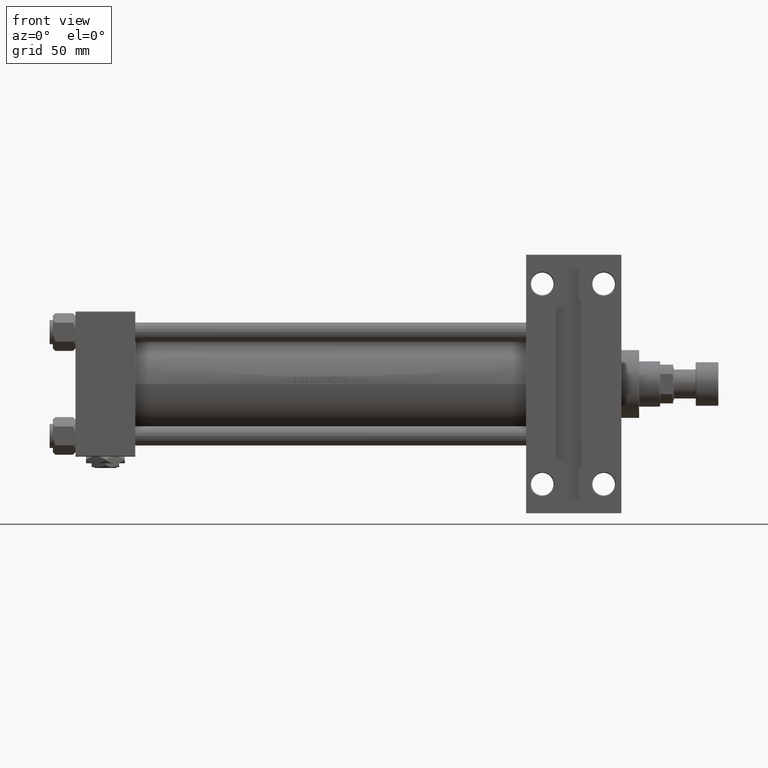
[diagram: clean part render]
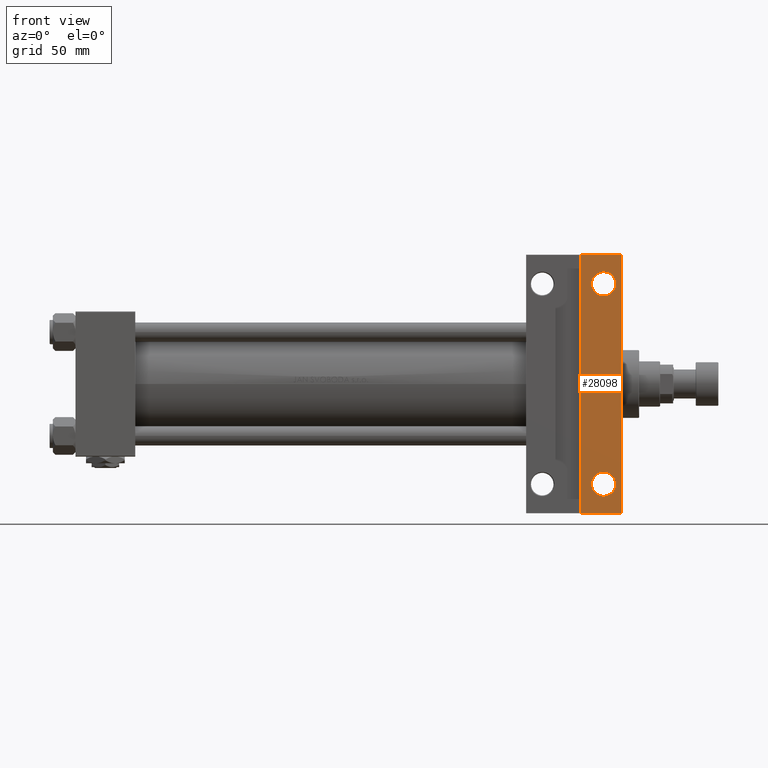
[diagram: same view with one face highlighted and labeled with its STEP entity id]
A machine part, front view. The second image highlights one B-rep face of the part: STEP entity #28098.
In plain terms, the highlighted planar face has unit normal (0, -1, 0).
Its self-contained STEP definition (entity closure, byte-faithful):
#458 = CARTESIAN_POINT ( 'NONE',  ( 334.4994999999999550, 62.00000000000000000, -45.00000000000000000 ) ) ;
#677 = EDGE_LOOP ( 'NONE', ( #33977, #1144, #22619, #39502 ) ) ;
#886 = EDGE_CURVE ( 'NONE', #48854, #15647, #16352, .T. ) ;
#1144 = ORIENTED_EDGE ( 'NONE', *, *, #31931, .T. ) ;
#2089 = EDGE_CURVE ( 'NONE', #15647, #48854, #48029, .T. ) ;
#2773 = VECTOR ( 'NONE', #20971, 1000.000000000000000 ) ;
#2859 = DIRECTION ( 'NONE',  ( -0.000000000000000000, -0.000000000000000000, 1.000000000000000000 ) ) ;
#3836 = EDGE_CURVE ( 'NONE', #8250, #49686, #22198, .T. ) ;
#4252 = AXIS2_PLACEMENT_3D ( 'NONE', #35928, #20470, #8764 ) ;
#6656 = DIRECTION ( 'NONE',  ( -1.000000000000000000, 0.000000000000000000, 0.000000000000000000 ) ) ;
#6708 = CARTESIAN_POINT ( 'NONE',  ( 337.9999999999999432, 45.00000000000001421, -45.00000000000000000 ) ) ;
#7020 = AXIS2_PLACEMENT_3D ( 'NONE', #6708, #32875, #10524 ) ;
#8250 = VERTEX_POINT ( 'NONE', #21520 ) ;
#8438 = EDGE_CURVE ( 'NONE', #37864, #49686, #9758, .T. ) ;
#8764 = DIRECTION ( 'NONE',  ( -1.000000000000000000, 0.000000000000000000, 0.000000000000000000 ) ) ;
#9758 = LINE ( 'NONE', #47367, #2773 ) ;
#9845 = CARTESIAN_POINT ( 'NONE',  ( 334.4994999999999550, -62.00000000000000000, -45.00000000000000000 ) ) ;
#10524 = DIRECTION ( 'NONE',  ( -1.000000000000000000, 0.000000000000000000, -0.000000000000000000 ) ) ;
#11666 = DIRECTION ( 'NONE',  ( 0.000000000000000000, -1.000000000000000000, 0.000000000000000000 ) ) ;
#11881 = ORIENTED_EDGE ( 'NONE', *, *, #22322, .T. ) ;
#12633 = ORIENTED_EDGE ( 'NONE', *, *, #2089, .T. ) ;
#13763 = VERTEX_POINT ( 'NONE', #38112 ) ;
#14559 = DIRECTION ( 'NONE',  ( -1.000000000000000000, 4.704334850106595794E-16, -0.000000000000000000 ) ) ;
#14791 = VECTOR ( 'NONE', #11666, 1000.000000000000000 ) ;
#15647 = VERTEX_POINT ( 'NONE', #9845 ) ;
#16352 = CIRCLE ( 'NONE', #47169, 7.499499999999992284 ) ;
#16650 = EDGE_CURVE ( 'NONE', #32006, #36851, #20072, .T. ) ;
#17535 = EDGE_LOOP ( 'NONE', ( #28365, #12633 ) ) ;
#17897 = FACE_BOUND ( 'NONE', #42829, .T. ) ;
#18159 = FACE_OUTER_BOUND ( 'NONE', #677, .T. ) ;
#18199 = CIRCLE ( 'NONE', #29522, 7.499499999999992284 ) ;
#18632 = CARTESIAN_POINT ( 'NONE',  ( 278.9999999999999432, -80.00000000000001421, -45.00000000000000000 ) ) ;
#19041 = CARTESIAN_POINT ( 'NONE',  ( 319.5004999999999882, 62.00000000000000000, -45.00000000000000000 ) ) ;
#20024 = CARTESIAN_POINT ( 'NONE',  ( 312.9999999999999432, -79.99999999999997158, -45.00000000000000000 ) ) ;
#20072 = CIRCLE ( 'NONE', #37892, 7.499499999999992284 ) ;
#20470 = DIRECTION ( 'NONE',  ( -0.000000000000000000, -0.000000000000000000, 1.000000000000000000 ) ) ;
#20971 = DIRECTION ( 'NONE',  ( -0.000000000000000000, -1.000000000000000000, -0.000000000000000000 ) ) ;
#21520 = CARTESIAN_POINT ( 'NONE',  ( 337.9999999999999432, -80.00000000000004263, -45.00000000000000000 ) ) ;
#22198 = LINE ( 'NONE', #18632, #44062 ) ;
#22314 = DIRECTION ( 'NONE',  ( -0.000000000000000000, -0.000000000000000000, 1.000000000000000000 ) ) ;
#22322 = EDGE_CURVE ( 'NONE', #36851, #32006, #18199, .T. ) ;
#22619 = ORIENTED_EDGE ( 'NONE', *, *, #44537, .T. ) ;
#23552 = LINE ( 'NONE', #38543, #47719 ) ;
#23807 = DIRECTION ( 'NONE',  ( -0.000000000000000000, -0.000000000000000000, 1.000000000000000000 ) ) ;
#25500 = ORIENTED_EDGE ( 'NONE', *, *, #16650, .T. ) ;
#25608 = DIRECTION ( 'NONE',  ( -1.000000000000000000, 0.000000000000000000, 0.000000000000000000 ) ) ;
#27293 = CARTESIAN_POINT ( 'NONE',  ( 319.5004999999999882, -62.00000000000000000, -45.00000000000000000 ) ) ;
#27398 = CARTESIAN_POINT ( 'NONE',  ( 337.9999999999999432, 45.00000000000001421, -45.00000000000000000 ) ) ;
#28098 = ADVANCED_FACE ( 'NONE', ( #18159, #29818, #17897 ), #45308, .T. ) ;
#28365 = ORIENTED_EDGE ( 'NONE', *, *, #886, .T. ) ;
#29522 = AXIS2_PLACEMENT_3D ( 'NONE', #33572, #2859, #6656 ) ;
#29818 = FACE_BOUND ( 'NONE', #17535, .T. ) ;
#30699 = LINE ( 'NONE', #27398, #14791 ) ;
#30912 = CARTESIAN_POINT ( 'NONE',  ( 326.9999999999999432, -62.00000000000000000, -45.00000000000000000 ) ) ;
#31931 = EDGE_CURVE ( 'NONE', #37864, #13763, #23552, .T. ) ;
#32006 = VERTEX_POINT ( 'NONE', #458 ) ;
#32875 = DIRECTION ( 'NONE',  ( 0.000000000000000000, 0.000000000000000000, -1.000000000000000000 ) ) ;
#33572 = CARTESIAN_POINT ( 'NONE',  ( 326.9999999999999432, 62.00000000000000000, -45.00000000000000000 ) ) ;
#33967 = CARTESIAN_POINT ( 'NONE',  ( 326.9999999999999432, 62.00000000000000000, -45.00000000000000000 ) ) ;
#33977 = ORIENTED_EDGE ( 'NONE', *, *, #8438, .F. ) ;
#34700 = CARTESIAN_POINT ( 'NONE',  ( 312.9999999999999432, 79.99999999999995737, -45.00000000000000000 ) ) ;
#34978 = DIRECTION ( 'NONE',  ( -1.000000000000000000, 0.000000000000000000, 0.000000000000000000 ) ) ;
#35928 = CARTESIAN_POINT ( 'NONE',  ( 326.9999999999999432, -62.00000000000000000, -45.00000000000000000 ) ) ;
#36851 = VERTEX_POINT ( 'NONE', #19041 ) ;
#37864 = VERTEX_POINT ( 'NONE', #34700 ) ;
#37892 = AXIS2_PLACEMENT_3D ( 'NONE', #33967, #22314, #25608 ) ;
#38112 = CARTESIAN_POINT ( 'NONE',  ( 337.9999999999999432, 79.99999999999998579, -45.00000000000000000 ) ) ;
#38543 = CARTESIAN_POINT ( 'NONE',  ( 278.9999999999999432, 79.99999999999995737, -45.00000000000000000 ) ) ;
#39502 = ORIENTED_EDGE ( 'NONE', *, *, #3836, .T. ) ;
#42346 = DIRECTION ( 'NONE',  ( 1.000000000000000000, 4.704334850106595794E-16, 0.000000000000000000 ) ) ;
#42829 = EDGE_LOOP ( 'NONE', ( #11881, #25500 ) ) ;
#44062 = VECTOR ( 'NONE', #14559, 1000.000000000000000 ) ;
#44537 = EDGE_CURVE ( 'NONE', #13763, #8250, #30699, .T. ) ;
#45308 = PLANE ( 'NONE',  #7020 ) ;
#47169 = AXIS2_PLACEMENT_3D ( 'NONE', #30912, #23807, #34978 ) ;
#47367 = CARTESIAN_POINT ( 'NONE',  ( 312.9999999999999432, -79.99999999999997158, -45.00000000000000000 ) ) ;
#47719 = VECTOR ( 'NONE', #42346, 1000.000000000000000 ) ;
#48029 = CIRCLE ( 'NONE', #4252, 7.499499999999992284 ) ;
#48854 = VERTEX_POINT ( 'NONE', #27293 ) ;
#49686 = VERTEX_POINT ( 'NONE', #20024 ) ;